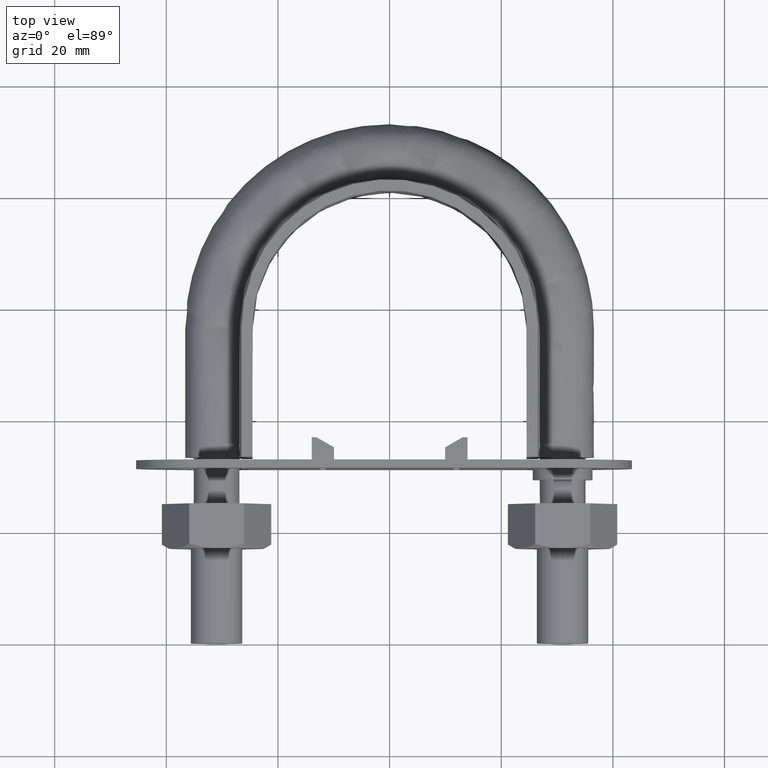
[diagram: clean part render]
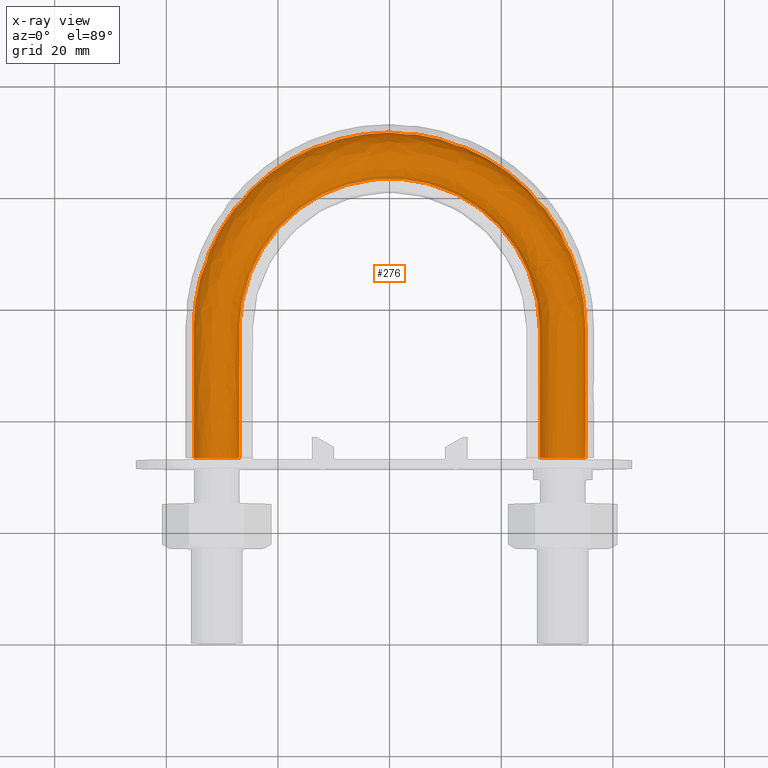
[diagram: x-ray — body ghosted, one internal face saturated and labeled with its STEP entity id]
A machine part, top view, then the same camera in x-ray: the body is ghosted and one INTERNAL B-rep face — a face not visible from any outside direction — is saturated and labeled: STEP entity #276.
In plain terms, the highlighted face is a freeform B-spline surface patch.
Its self-contained STEP definition (entity closure, byte-faithful):
#276 = ADVANCED_FACE( '', ( #401, #402 ), #403, .T. );
#401 = FACE_OUTER_BOUND( '', #1330, .T. );
#402 = FACE_OUTER_BOUND( '', #1331, .T. );
#403 = B_SPLINE_SURFACE_WITH_KNOTS( '', 3, 3, ( ( #1332, #1333, #1334, #1335, #1336, #1337, #1338, #1339, #1340, #1341, #1342, #1343, #1344, #1345, #1346 ), ( #1347, #1348, #1349, #1350, #1351, #1352, #1353, #1354, #1355, #1356, #1357, #1358, #1359, #1360, #1361 ), ( #1362, #1363, #1364, #1365, #1366, #1367, #1368, #1369, #1370, #1371, #1372, #1373, #1374, #1375, #1376 ), ( #1377, #1378, #1379, #1380, #1381, #1382, #1383, #1384, #1385, #1386, #1387, #1388, #1389, #1390, #1391 ), ( #1392, #1393, #1394, #1395, #1396, #1397, #1398, #1399, #1400, #1401, #1402, #1403, #1404, #1405, #1406 ), ( #1407, #1408, #1409, #1410, #1411, #1412, #1413, #1414, #1415, #1416, #1417, #1418, #1419, #1420, #1421 ), ( #1422, #1423, #1424, #1425, #1426, #1427, #1428, #1429, #1430, #1431, #1432, #1433, #1434, #1435, #1436 ), ( #1437, #1438, #1439, #1440, #1441, #1442, #1443, #1444, #1445, #1446, #1447, #1448, #1449, #1450, #1451 ), ( #1452, #1453, #1454, #1455, #1456, #1457, #1458, #1459, #1460, #1461, #1462, #1463, #1464, #1465, #1466 ), ( #1467, #1468, #1469, #1470, #1471, #1472, #1473, #1474, #1475, #1476, #1477, #1478, #1479, #1480, #1481 ) ), .UNSPECIFIED., .T., .F., .F., ( 2, 1, 1, 1, 1, 1, 1, 1, 1, 1, 1, 2 ), ( 4, 3, 1, 1, 1, 1, 1, 3, 4 ), ( -0.285714285714286, -0.142857142857143, 0.000000000000000, 0.142857142857143, 0.285714285714286, 0.428571428571429, 0.571428571428571, 0.714285714285714, 0.857142857142857, 1.00000000000000, 1.14285714285714, 1.28571428571429 ), ( 0.000000000000000, 1.00000000000000, 2.00000000000000, 3.00000000000000, 4.00000000000000, 5.00000000000000, 6.00000000000000, 7.00000000000000, 8.00000000000000 ), .UNSPECIFIED. );
#1330 = EDGE_LOOP( '', ( #1784, #1785, #1786, #1787, #1788, #1789, #1790 ) );
#1331 = EDGE_LOOP( '', ( #1791, #1792, #1793, #1794, #1795, #1796, #1797 ) );
#1332 = CARTESIAN_POINT( '', ( 28.0768231851220, 29.3500000000000, -3.66554778583225 ) );
#1333 = CARTESIAN_POINT( '', ( 28.0768231851220, 38.3833333333333, -3.66554778583225 ) );
#1334 = CARTESIAN_POINT( '', ( 28.0768231851220, 47.4166666666667, -3.66554778583225 ) );
#1335 = CARTESIAN_POINT( '', ( 28.0768231851220, 56.4500000000000, -3.66554778583225 ) );
#1336 = CARTESIAN_POINT( '', ( 28.0768231851220, 61.3360112912107, -3.66554778583225 ) );
#1337 = CARTESIAN_POINT( '', ( 25.4518771226932, 71.1503436557627, -3.66554778583225 ) );
#1338 = CARTESIAN_POINT( '', ( 14.6946481081682, 81.9002498233804, -3.66554778583225 ) );
#1339 = CARTESIAN_POINT( '', ( 1.74509282993778E-014, 85.8401098659927, -3.66554778583225 ) );
#1340 = CARTESIAN_POINT( '', ( -14.6946481081682, 81.9002498233804, -3.66554778583225 ) );
#1341 = CARTESIAN_POINT( '', ( -25.4518771226931, 71.1503436557627, -3.66554778583225 ) );
#1342 = CARTESIAN_POINT( '', ( -28.0768231851219, 61.3360112912106, -3.66554778583225 ) );
#1343 = CARTESIAN_POINT( '', ( -28.0768231851219, 56.4500000000000, -3.66554778583225 ) );
#1344 = CARTESIAN_POINT( '', ( -28.0768231851220, 47.4166666666666, -3.66554778583225 ) );
#1345 = CARTESIAN_POINT( '', ( -28.0768231851220, 38.3833333333333, -3.66554778583225 ) );
#1346 = CARTESIAN_POINT( '', ( -28.0768231851220, 29.3500000000000, -3.66554778583225 ) );
#1347 = CARTESIAN_POINT( '', ( 26.3115884074390, 29.3500000000000, 0.000000000000000 ) );
#1348 = CARTESIAN_POINT( '', ( 26.3115884074390, 38.3833333333333, 0.000000000000000 ) );
#1349 = CARTESIAN_POINT( '', ( 26.3115884074390, 47.4166666666667, 0.000000000000000 ) );
#1350 = CARTESIAN_POINT( '', ( 26.3115884074390, 56.4500000000000, 0.000000000000000 ) );
#1351 = CARTESIAN_POINT( '', ( 26.3115884074390, 61.0206824691230, 0.000000000000000 ) );
#1352 = CARTESIAN_POINT( '', ( 23.8516769021034, 70.2299070291376, 0.000000000000000 ) );
#1353 = CARTESIAN_POINT( '', ( 13.7707720800534, 80.2990669166508, 0.000000000000000 ) );
#1354 = CARTESIAN_POINT( '', ( 2.02604776616870E-014, 83.9928491528331, 0.000000000000000 ) );
#1355 = CARTESIAN_POINT( '', ( -13.7707720800534, 80.2990669166508, 0.000000000000000 ) );
#1356 = CARTESIAN_POINT( '', ( -23.8516769021034, 70.2299070291376, 0.000000000000000 ) );
#1357 = CARTESIAN_POINT( '', ( -26.3115884074390, 61.0206824691230, 0.000000000000000 ) );
#1358 = CARTESIAN_POINT( '', ( -26.3115884074390, 56.4500000000000, 0.000000000000000 ) );
#1359 = CARTESIAN_POINT( '', ( -26.3115884074390, 47.4166666666666, 0.000000000000000 ) );
#1360 = CARTESIAN_POINT( '', ( -26.3115884074390, 38.3833333333333, 0.000000000000000 ) );
#1361 = CARTESIAN_POINT( '', ( -26.3115884074390, 29.3500000000000, 0.000000000000000 ) );
#1362 = CARTESIAN_POINT( '', ( 28.0768231851220, 29.3500000000000, 3.66554778583225 ) );
#1363 = CARTESIAN_POINT( '', ( 28.0768231851220, 38.3833333333333, 3.66554778583225 ) );
#1364 = CARTESIAN_POINT( '', ( 28.0768231851220, 47.4166666666667, 3.66554778583225 ) );
#1365 = CARTESIAN_POINT( '', ( 28.0768231851220, 56.4500000000000, 3.66554778583225 ) );
#1366 = CARTESIAN_POINT( '', ( 28.0768231851220, 61.3360112912106, 3.66554778583225 ) );
#1367 = CARTESIAN_POINT( '', ( 25.4518771226932, 71.1503436557627, 3.66554778583225 ) );
#1368 = CARTESIAN_POINT( '', ( 14.6946481081682, 81.9002498233804, 3.66554778583225 ) );
#1369 = CARTESIAN_POINT( '', ( 2.61245456792618E-014, 85.8401098659927, 3.66554778583225 ) );
#1370 = CARTESIAN_POINT( '', ( -14.6946481081682, 81.9002498233804, 3.66554778583225 ) );
#1371 = CARTESIAN_POINT( '', ( -25.4518771226931, 71.1503436557627, 3.66554778583225 ) );
#1372 = CARTESIAN_POINT( '', ( -28.0768231851219, 61.3360112912106, 3.66554778583225 ) );
#1373 = CARTESIAN_POINT( '', ( -28.0768231851219, 56.4500000000000, 3.66554778583225 ) );
#1374 = CARTESIAN_POINT( '', ( -28.0768231851220, 47.4166666666667, 3.66554778583225 ) );
#1375 = CARTESIAN_POINT( '', ( -28.0768231851220, 38.3833333333333, 3.66554778583225 ) );
#1376 = CARTESIAN_POINT( '', ( -28.0768231851220, 29.3500000000000, 3.66554778583225 ) );
#1377 = CARTESIAN_POINT( '', ( 32.0432697263483, 29.3500000000000, 4.57086332538453 ) );
#1378 = CARTESIAN_POINT( '', ( 32.0432697263483, 38.3833333333333, 4.57086332538453 ) );
#1379 = CARTESIAN_POINT( '', ( 32.0432697263483, 47.4166666666666, 4.57086332538454 ) );
#1380 = CARTESIAN_POINT( '', ( 32.0432697263483, 56.4500000000000, 4.57086332538454 ) );
#1381 = CARTESIAN_POINT( '', ( 32.0432697263483, 62.0445487229058, 4.57086332538454 ) );
#1382 = CARTESIAN_POINT( '', ( 29.0474943802225, 73.2185459823037, 4.57086332538453 ) );
#1383 = CARTESIAN_POINT( '', ( 16.7705786997056, 85.4980751566230, 4.57086332538454 ) );
#1384 = CARTESIAN_POINT( '', ( 2.57654882985942E-014, 89.9908670112109, 4.57086332538454 ) );
#1385 = CARTESIAN_POINT( '', ( -16.7705786997056, 85.4980751566230, 4.57086332538454 ) );
#1386 = CARTESIAN_POINT( '', ( -29.0474943802224, 73.2185459823038, 4.57086332538453 ) );
#1387 = CARTESIAN_POINT( '', ( -32.0432697263483, 62.0445487229059, 4.57086332538454 ) );
#1388 = CARTESIAN_POINT( '', ( -32.0432697263483, 56.4500000000000, 4.57086332538454 ) );
#1389 = CARTESIAN_POINT( '', ( -32.0432697263483, 47.4166666666667, 4.57086332538454 ) );
#1390 = CARTESIAN_POINT( '', ( -32.0432697263483, 38.3833333333333, 4.57086332538453 ) );
#1391 = CARTESIAN_POINT( '', ( -32.0432697263483, 29.3500000000000, 4.57086332538453 ) );
#1392 = CARTESIAN_POINT( '', ( 35.2241128848103, 29.3500000000000, 2.03422555230246 ) );
#1393 = CARTESIAN_POINT( '', ( 35.2241128848102, 38.3833333333333, 2.03422555230246 ) );
#1394 = CARTESIAN_POINT( '', ( 35.2241128848103, 47.4166666666666, 2.03422555230246 ) );
#1395 = CARTESIAN_POINT( '', ( 35.2241128848103, 56.4500000000000, 2.03422555230246 ) );
#1396 = CARTESIAN_POINT( '', ( 35.2241128848103, 62.6127516266125, 2.03422555230246 ) );
#1397 = CARTESIAN_POINT( '', ( 31.9309555425463, 74.8771154732363, 2.03422555230246 ) );
#1398 = CARTESIAN_POINT( '', ( 18.4353457779711, 88.3833070581849, 2.03422555230247 ) );
#1399 = CARTESIAN_POINT( '', ( 2.18363080540617E-014, 93.3195157981229, 2.03422555230246 ) );
#1400 = CARTESIAN_POINT( '', ( -18.4353457779711, 88.3833070581848, 2.03422555230247 ) );
#1401 = CARTESIAN_POINT( '', ( -31.9309555425463, 74.8771154732363, 2.03422555230246 ) );
#1402 = CARTESIAN_POINT( '', ( -35.2241128848102, 62.6127516266125, 2.03422555230246 ) );
#1403 = CARTESIAN_POINT( '', ( -35.2241128848102, 56.4500000000000, 2.03422555230246 ) );
#1404 = CARTESIAN_POINT( '', ( -35.2241128848102, 47.4166666666667, 2.03422555230246 ) );
#1405 = CARTESIAN_POINT( '', ( -35.2241128848102, 38.3833333333333, 2.03422555230246 ) );
#1406 = CARTESIAN_POINT( '', ( -35.2241128848102, 29.3500000000000, 2.03422555230246 ) );
#1407 = CARTESIAN_POINT( '', ( 35.2241128848103, 29.3500000000000, -2.03422555230246 ) );
#1408 = CARTESIAN_POINT( '', ( 35.2241128848102, 38.3833333333333, -2.03422555230246 ) );
#1409 = CARTESIAN_POINT( '', ( 35.2241128848103, 47.4166666666666, -2.03422555230246 ) );
#1410 = CARTESIAN_POINT( '', ( 35.2241128848103, 56.4500000000000, -2.03422555230246 ) );
#1411 = CARTESIAN_POINT( '', ( 35.2241128848103, 62.6127516266125, -2.03422555230246 ) );
#1412 = CARTESIAN_POINT( '', ( 31.9309555425463, 74.8771154732363, -2.03422555230246 ) );
#1413 = CARTESIAN_POINT( '', ( 18.4353457779711, 88.3833070581848, -2.03422555230246 ) );
#1414 = CARTESIAN_POINT( '', ( 1.92342228400965E-014, 93.3195157981229, -2.03422555230246 ) );
#1415 = CARTESIAN_POINT( '', ( -18.4353457779711, 88.3833070581848, -2.03422555230246 ) );
#1416 = CARTESIAN_POINT( '', ( -31.9309555425463, 74.8771154732363, -2.03422555230246 ) );
#1417 = CARTESIAN_POINT( '', ( -35.2241128848102, 62.6127516266125, -2.03422555230246 ) );
#1418 = CARTESIAN_POINT( '', ( -35.2241128848102, 56.4500000000000, -2.03422555230246 ) );
#1419 = CARTESIAN_POINT( '', ( -35.2241128848102, 47.4166666666667, -2.03422555230246 ) );
#1420 = CARTESIAN_POINT( '', ( -35.2241128848102, 38.3833333333333, -2.03422555230246 ) );
#1421 = CARTESIAN_POINT( '', ( -35.2241128848102, 29.3500000000000, -2.03422555230246 ) );
#1422 = CARTESIAN_POINT( '', ( 32.0432697263483, 29.3500000000000, -4.57086332538454 ) );
#1423 = CARTESIAN_POINT( '', ( 32.0432697263483, 38.3833333333333, -4.57086332538454 ) );
#1424 = CARTESIAN_POINT( '', ( 32.0432697263483, 47.4166666666666, -4.57086332538454 ) );
#1425 = CARTESIAN_POINT( '', ( 32.0432697263483, 56.4500000000000, -4.57086332538454 ) );
#1426 = CARTESIAN_POINT( '', ( 32.0432697263483, 62.0445487229059, -4.57086332538454 ) );
#1427 = CARTESIAN_POINT( '', ( 29.0474943802225, 73.2185459823037, -4.57086332538453 ) );
#1428 = CARTESIAN_POINT( '', ( 16.7705786997056, 85.4980751566230, -4.57086332538454 ) );
#1429 = CARTESIAN_POINT( '', ( 1.62245091807218E-014, 89.9908670112109, -4.57086332538454 ) );
#1430 = CARTESIAN_POINT( '', ( -16.7705786997056, 85.4980751566230, -4.57086332538454 ) );
#1431 = CARTESIAN_POINT( '', ( -29.0474943802224, 73.2185459823037, -4.57086332538453 ) );
#1432 = CARTESIAN_POINT( '', ( -32.0432697263483, 62.0445487229059, -4.57086332538454 ) );
#1433 = CARTESIAN_POINT( '', ( -32.0432697263483, 56.4500000000000, -4.57086332538454 ) );
#1434 = CARTESIAN_POINT( '', ( -32.0432697263483, 47.4166666666667, -4.57086332538454 ) );
#1435 = CARTESIAN_POINT( '', ( -32.0432697263483, 38.3833333333333, -4.57086332538454 ) );
#1436 = CARTESIAN_POINT( '', ( -32.0432697263483, 29.3500000000000, -4.57086332538454 ) );
#1437 = CARTESIAN_POINT( '', ( 28.0768231851220, 29.3500000000000, -3.66554778583225 ) );
#1438 = CARTESIAN_POINT( '', ( 28.0768231851220, 38.3833333333333, -3.66554778583225 ) );
#1439 = CARTESIAN_POINT( '', ( 28.0768231851220, 47.4166666666667, -3.66554778583225 ) );
#1440 = CARTESIAN_POINT( '', ( 28.0768231851220, 56.4500000000000, -3.66554778583225 ) );
#1441 = CARTESIAN_POINT( '', ( 28.0768231851220, 61.3360112912107, -3.66554778583225 ) );
#1442 = CARTESIAN_POINT( '', ( 25.4518771226932, 71.1503436557627, -3.66554778583225 ) );
#1443 = CARTESIAN_POINT( '', ( 14.6946481081682, 81.9002498233804, -3.66554778583225 ) );
#1444 = CARTESIAN_POINT( '', ( 1.74509282993778E-014, 85.8401098659927, -3.66554778583225 ) );
#1445 = CARTESIAN_POINT( '', ( -14.6946481081682, 81.9002498233804, -3.66554778583225 ) );
#1446 = CARTESIAN_POINT( '', ( -25.4518771226931, 71.1503436557627, -3.66554778583225 ) );
#1447 = CARTESIAN_POINT( '', ( -28.0768231851219, 61.3360112912106, -3.66554778583225 ) );
#1448 = CARTESIAN_POINT( '', ( -28.0768231851219, 56.4500000000000, -3.66554778583225 ) );
#1449 = CARTESIAN_POINT( '', ( -28.0768231851220, 47.4166666666666, -3.66554778583225 ) );
#1450 = CARTESIAN_POINT( '', ( -28.0768231851220, 38.3833333333333, -3.66554778583225 ) );
#1451 = CARTESIAN_POINT( '', ( -28.0768231851220, 29.3500000000000, -3.66554778583225 ) );
#1452 = CARTESIAN_POINT( '', ( 26.3115884074390, 29.3500000000000, 0.000000000000000 ) );
#1453 = CARTESIAN_POINT( '', ( 26.3115884074390, 38.3833333333333, 0.000000000000000 ) );
#1454 = CARTESIAN_POINT( '', ( 26.3115884074390, 47.4166666666667, 0.000000000000000 ) );
#1455 = CARTESIAN_POINT( '', ( 26.3115884074390, 56.4500000000000, 0.000000000000000 ) );
#1456 = CARTESIAN_POINT( '', ( 26.3115884074390, 61.0206824691230, 0.000000000000000 ) );
#1457 = CARTESIAN_POINT( '', ( 23.8516769021034, 70.2299070291376, 0.000000000000000 ) );
#1458 = CARTESIAN_POINT( '', ( 13.7707720800534, 80.2990669166508, 0.000000000000000 ) );
#1459 = CARTESIAN_POINT( '', ( 2.02604776616870E-014, 83.9928491528331, 0.000000000000000 ) );
#1460 = CARTESIAN_POINT( '', ( -13.7707720800534, 80.2990669166508, 0.000000000000000 ) );
#1461 = CARTESIAN_POINT( '', ( -23.8516769021034, 70.2299070291376, 0.000000000000000 ) );
#1462 = CARTESIAN_POINT( '', ( -26.3115884074390, 61.0206824691230, 0.000000000000000 ) );
#1463 = CARTESIAN_POINT( '', ( -26.3115884074390, 56.4500000000000, 0.000000000000000 ) );
#1464 = CARTESIAN_POINT( '', ( -26.3115884074390, 47.4166666666666, 0.000000000000000 ) );
#1465 = CARTESIAN_POINT( '', ( -26.3115884074390, 38.3833333333333, 0.000000000000000 ) );
#1466 = CARTESIAN_POINT( '', ( -26.3115884074390, 29.3500000000000, 0.000000000000000 ) );
#1467 = CARTESIAN_POINT( '', ( 28.0768231851220, 29.3500000000000, 3.66554778583225 ) );
#1468 = CARTESIAN_POINT( '', ( 28.0768231851220, 38.3833333333333, 3.66554778583225 ) );
#1469 = CARTESIAN_POINT( '', ( 28.0768231851220, 47.4166666666667, 3.66554778583225 ) );
#1470 = CARTESIAN_POINT( '', ( 28.0768231851220, 56.4500000000000, 3.66554778583225 ) );
#1471 = CARTESIAN_POINT( '', ( 28.0768231851220, 61.3360112912106, 3.66554778583225 ) );
#1472 = CARTESIAN_POINT( '', ( 25.4518771226932, 71.1503436557627, 3.66554778583225 ) );
#1473 = CARTESIAN_POINT( '', ( 14.6946481081682, 81.9002498233804, 3.66554778583225 ) );
#1474 = CARTESIAN_POINT( '', ( 2.61245456792618E-014, 85.8401098659927, 3.66554778583225 ) );
#1475 = CARTESIAN_POINT( '', ( -14.6946481081682, 81.9002498233804, 3.66554778583225 ) );
#1476 = CARTESIAN_POINT( '', ( -25.4518771226931, 71.1503436557627, 3.66554778583225 ) );
#1477 = CARTESIAN_POINT( '', ( -28.0768231851219, 61.3360112912106, 3.66554778583225 ) );
#1478 = CARTESIAN_POINT( '', ( -28.0768231851219, 56.4500000000000, 3.66554778583225 ) );
#1479 = CARTESIAN_POINT( '', ( -28.0768231851220, 47.4166666666667, 3.66554778583225 ) );
#1480 = CARTESIAN_POINT( '', ( -28.0768231851220, 38.3833333333333, 3.66554778583225 ) );
#1481 = CARTESIAN_POINT( '', ( -28.0768231851220, 29.3500000000000, 3.66554778583225 ) );
#1784 = ORIENTED_EDGE( '', *, *, #2541, .T. );
#1785 = ORIENTED_EDGE( '', *, *, #2542, .T. );
#1786 = ORIENTED_EDGE( '', *, *, #2543, .T. );
#1787 = ORIENTED_EDGE( '', *, *, #2544, .T. );
#1788 = ORIENTED_EDGE( '', *, *, #2545, .T. );
#1789 = ORIENTED_EDGE( '', *, *, #2546, .T. );
#1790 = ORIENTED_EDGE( '', *, *, #2547, .T. );
#1791 = ORIENTED_EDGE( '', *, *, #2548, .T. );
#1792 = ORIENTED_EDGE( '', *, *, #2549, .F. );
#1793 = ORIENTED_EDGE( '', *, *, #2550, .F. );
#1794 = ORIENTED_EDGE( '', *, *, #2551, .F. );
#1795 = ORIENTED_EDGE( '', *, *, #2552, .F. );
#1796 = ORIENTED_EDGE( '', *, *, #2553, .F. );
#1797 = ORIENTED_EDGE( '', *, *, #2540, .F. );
#2540 = EDGE_CURVE( '', #2791, #2792, #2794, .T. );
#2541 = EDGE_CURVE( '', #2775, #2786, #2795, .T. );
#2542 = EDGE_CURVE( '', #2786, #2784, #2796, .T. );
#2543 = EDGE_CURVE( '', #2784, #2782, #2797, .T. );
#2544 = EDGE_CURVE( '', #2782, #2780, #2798, .T. );
#2545 = EDGE_CURVE( '', #2780, #2778, #2799, .T. );
#2546 = EDGE_CURVE( '', #2778, #2776, #2800, .T. );
#2547 = EDGE_CURVE( '', #2776, #2775, #2801, .T. );
#2548 = EDGE_CURVE( '', #2791, #2802, #2803, .T. );
#2549 = EDGE_CURVE( '', #2804, #2802, #2805, .T. );
#2550 = EDGE_CURVE( '', #2806, #2804, #2807, .T. );
#2551 = EDGE_CURVE( '', #2808, #2806, #2809, .T. );
#2552 = EDGE_CURVE( '', #2810, #2808, #2811, .T. );
#2553 = EDGE_CURVE( '', #2792, #2810, #2812, .T. );
#2775 = VERTEX_POINT( '', #3361 );
#2776 = VERTEX_POINT( '', #3362 );
#2778 = VERTEX_POINT( '', #3364 );
#2780 = VERTEX_POINT( '', #3366 );
#2782 = VERTEX_POINT( '', #3368 );
#2784 = VERTEX_POINT( '', #3370 );
#2786 = VERTEX_POINT( '', #3372 );
#2791 = VERTEX_POINT( '', #3377 );
#2792 = VERTEX_POINT( '', #3378 );
#2794 = B_SPLINE_CURVE_WITH_KNOTS( '', 3, ( #3380, #3381, #3382, #3383 ), .UNSPECIFIED., .F., .F., ( 4, 4 ), ( -1.00000000000000, -0.857142857142857 ), .UNSPECIFIED. );
#2795 = B_SPLINE_CURVE_WITH_KNOTS( '', 3, ( #3384, #3385, #3386, #3387 ), .UNSPECIFIED., .F., .F., ( 4, 4 ), ( 5.20417042793042E-017, 0.00365969768494601 ), .UNSPECIFIED. );
#2796 = B_SPLINE_CURVE_WITH_KNOTS( '', 3, ( #3388, #3389, #3390, #3391 ), .UNSPECIFIED., .F., .F., ( 4, 4 ), ( 0.00365969768494601, 0.00731437302338657 ), .UNSPECIFIED. );
#2797 = B_SPLINE_CURVE_WITH_KNOTS( '', 3, ( #3392, #3393, #3394, #3395 ), .UNSPECIFIED., .F., .F., ( 4, 4 ), ( 0.00731437302338657, 0.0109748044148466 ), .UNSPECIFIED. );
#2798 = B_SPLINE_CURVE_WITH_KNOTS( '', 3, ( #3396, #3397, #3398, #3399 ), .UNSPECIFIED., .F., .F., ( 4, 4 ), ( 0.0109748044148466, 0.0146317467085368 ), .UNSPECIFIED. );
#2799 = B_SPLINE_CURVE_WITH_KNOTS( '', 3, ( #3400, #3401, #3402, #3403 ), .UNSPECIFIED., .F., .F., ( 4, 4 ), ( 0.0146317467085368, 0.0182856759681268 ), .UNSPECIFIED. );
#2800 = B_SPLINE_CURVE_WITH_KNOTS( '', 3, ( #3404, #3405, #3406, #3407 ), .UNSPECIFIED., .F., .F., ( 4, 4 ), ( 0.0182856759681268, 0.0219456464543702 ), .UNSPECIFIED. );
#2801 = B_SPLINE_CURVE_WITH_KNOTS( '', 3, ( #3408, #3409, #3410, #3411 ), .UNSPECIFIED., .F., .F., ( 4, 4 ), ( 0.0219456464543702, 0.0255944202292315 ), .UNSPECIFIED. );
#2802 = VERTEX_POINT( '', #3412 );
#2803 = B_SPLINE_CURVE_WITH_KNOTS( '', 3, ( #3413, #3414, #3415, #3416 ), .UNSPECIFIED., .F., .F., ( 4, 4 ), ( 2.90940334553050E-016, 0.00365969768494577 ), .UNSPECIFIED. );
#2804 = VERTEX_POINT( '', #3417 );
#2805 = B_SPLINE_CURVE_WITH_KNOTS( '', 3, ( #3418, #3419, #3420, #3421 ), .UNSPECIFIED., .F., .F., ( 4, 4 ), ( -0.285714285714286, -0.142857142857143 ), .UNSPECIFIED. );
#2806 = VERTEX_POINT( '', #3422 );
#2807 = B_SPLINE_CURVE_WITH_KNOTS( '', 3, ( #3423, #3424, #3425, #3426 ), .UNSPECIFIED., .F., .F., ( 4, 4 ), ( -0.428571428571429, -0.285714285714286 ), .UNSPECIFIED. );
#2808 = VERTEX_POINT( '', #3427 );
#2809 = B_SPLINE_CURVE_WITH_KNOTS( '', 3, ( #3428, #3429, #3430, #3431 ), .UNSPECIFIED., .F., .F., ( 4, 4 ), ( -0.571428571428571, -0.428571428571429 ), .UNSPECIFIED. );
#2810 = VERTEX_POINT( '', #3432 );
#2811 = B_SPLINE_CURVE_WITH_KNOTS( '', 3, ( #3433, #3434, #3435, #3436 ), .UNSPECIFIED., .F., .F., ( 4, 4 ), ( -0.714285714285714, -0.571428571428571 ), .UNSPECIFIED. );
#2812 = B_SPLINE_CURVE_WITH_KNOTS( '', 3, ( #3437, #3438, #3439, #3440 ), .UNSPECIFIED., .F., .F., ( 4, 4 ), ( -0.857142857142857, -0.714285714285714 ), .UNSPECIFIED. );
#3361 = CARTESIAN_POINT( '', ( -26.9000000000000, 33.3000000000000, 5.33492735711505E-014 ) );
#3362 = CARTESIAN_POINT( '', ( -28.4436918123920, 33.3000000000000, 3.20550907812911 ) );
#3364 = CARTESIAN_POINT( '', ( -31.9123358292377, 33.3000000000000, 3.99720443994166 ) );
#3366 = CARTESIAN_POINT( '', ( -34.6939723584000, 33.3000000000000, 1.77892333038180 ) );
#3368 = CARTESIAN_POINT( '', ( -34.6939723583862, 33.3000000000000, -1.77892333041036 ) );
#3370 = CARTESIAN_POINT( '', ( -31.9123358292209, 33.3000000000000, -3.99720443994546 ) );
#3372 = CARTESIAN_POINT( '', ( -28.4436918123794, 33.3000000000000, -3.20550907811911 ) );
#3377 = CARTESIAN_POINT( '', ( 26.9000000000000, 33.3000000000000, -2.95212466993632E-013 ) );
#3378 = CARTESIAN_POINT( '', ( 28.4436918123816, 33.3000000000000, -3.20550907812087 ) );
#3380 = CARTESIAN_POINT( '', ( 26.9000000000000, 33.3000000000000, -1.12529343482271E-012 ) );
#3381 = CARTESIAN_POINT( '', ( 26.9000000000003, 33.3000000000000, -1.22184926194564 ) );
#3382 = CARTESIAN_POINT( '', ( 27.4884115925620, 33.3000000000000, -2.44369852389024 ) );
#3383 = CARTESIAN_POINT( '', ( 28.4436918123816, 33.3000000000000, -3.20550907812087 ) );
#3384 = CARTESIAN_POINT( '', ( -26.9000000000000, 33.3000000000000, -1.07769695945059E-013 ) );
#3385 = CARTESIAN_POINT( '', ( -26.9000000000000, 33.3000000000000, -1.22184926194423 ) );
#3386 = CARTESIAN_POINT( '', ( -27.4884115925611, 33.3000000000000, -2.44369852388837 ) );
#3387 = CARTESIAN_POINT( '', ( -28.4436918123794, 33.3000000000000, -3.20550907811911 ) );
#3388 = CARTESIAN_POINT( '', ( -28.4436918123794, 33.3000000000000, -3.20550907811912 ) );
#3389 = CARTESIAN_POINT( '', ( -29.3989720321976, 33.3000000000000, -3.96731963234974 ) );
#3390 = CARTESIAN_POINT( '', ( -30.7211208792730, 33.3000000000000, -4.26909147886709 ) );
#3391 = CARTESIAN_POINT( '', ( -31.9123358292209, 33.3000000000000, -3.99720443994546 ) );
#3392 = CARTESIAN_POINT( '', ( -31.9123358292097, 33.3000000000000, -3.99720443994758 ) );
#3393 = CARTESIAN_POINT( '', ( -33.1035507791542, 33.3000000000000, -3.72531740102979 ) );
#3394 = CARTESIAN_POINT( '', ( -34.1638318319714, 33.3000000000000, -2.87977147667767 ) );
#3395 = CARTESIAN_POINT( '', ( -34.6939723583862, 33.3000000000000, -1.77892333041036 ) );
#3396 = CARTESIAN_POINT( '', ( -34.6939723583862, 33.3000000000000, -1.77892333041043 ) );
#3397 = CARTESIAN_POINT( '', ( -35.2241128848102, 33.3000000000000, -0.678075184124233 ) );
#3398 = CARTESIAN_POINT( '', ( -35.2241128848148, 33.3000000000000, 0.678075184091199 ) );
#3399 = CARTESIAN_POINT( '', ( -34.6939723584000, 33.3000000000000, 1.77892333038179 ) );
#3400 = CARTESIAN_POINT( '', ( -34.6939723584025, 33.3000000000000, 1.77892333037609 ) );
#3401 = CARTESIAN_POINT( '', ( -34.1638318319947, 33.3000000000000, 2.87977147665590 ) );
#3402 = CARTESIAN_POINT( '', ( -33.1035507791790, 33.3000000000000, 3.72531740101588 ) );
#3403 = CARTESIAN_POINT( '', ( -31.9123358292377, 33.3000000000000, 3.99720443994164 ) );
#3404 = CARTESIAN_POINT( '', ( -31.9123358292434, 33.3000000000000, 3.99720443994012 ) );
#3405 = CARTESIAN_POINT( '', ( -30.7211208792935, 33.3000000000000, 4.26909147886940 ) );
#3406 = CARTESIAN_POINT( '', ( -29.3989720322137, 33.3000000000000, 3.96731963235594 ) );
#3407 = CARTESIAN_POINT( '', ( -28.4436918123920, 33.3000000000000, 3.20550907812910 ) );
#3408 = CARTESIAN_POINT( '', ( -28.4436918123920, 33.3000000000000, 3.20550907812910 ) );
#3409 = CARTESIAN_POINT( '', ( -27.4884115925662, 33.3000000000000, 2.44369852389905 ) );
#3410 = CARTESIAN_POINT( '', ( -26.9000000000000, 33.3000000000000, 1.22184926194953 ) );
#3411 = CARTESIAN_POINT( '', ( -26.9000000000000, 33.3000000000000, 5.42101086242752E-016 ) );
#3412 = CARTESIAN_POINT( '', ( 28.4436918123793, 33.3000000000000, 3.20550907811897 ) );
#3413 = CARTESIAN_POINT( '', ( 26.9000000000000, 33.3000000000000, 3.25260651745651E-016 ) );
#3414 = CARTESIAN_POINT( '', ( 26.9000000000000, 33.3000000000000, 1.22184926194410 ) );
#3415 = CARTESIAN_POINT( '', ( 27.4884115925610, 33.3000000000000, 2.44369852388821 ) );
#3416 = CARTESIAN_POINT( '', ( 28.4436918123793, 33.3000000000000, 3.20550907811896 ) );
#3417 = CARTESIAN_POINT( '', ( 31.9123358292210, 33.3000000000000, 3.99720443994545 ) );
#3418 = CARTESIAN_POINT( '', ( 31.9123358292211, 33.3000000000000, 3.99720443994544 ) );
#3419 = CARTESIAN_POINT( '', ( 30.7211208792730, 33.3000000000000, 4.26909147886712 ) );
#3420 = CARTESIAN_POINT( '', ( 29.3989720321975, 33.3000000000000, 3.96731963234971 ) );
#3421 = CARTESIAN_POINT( '', ( 28.4436918123793, 33.3000000000000, 3.20550907811897 ) );
#3422 = CARTESIAN_POINT( '', ( 34.6939723584001, 33.3000000000000, 1.77892333038165 ) );
#3423 = CARTESIAN_POINT( '', ( 34.6939723584001, 33.3000000000000, 1.77892333038160 ) );
#3424 = CARTESIAN_POINT( '', ( 34.1638318319899, 33.3000000000000, 2.87977147666293 ) );
#3425 = CARTESIAN_POINT( '', ( 33.1035507791691, 33.3000000000000, 3.72531740102376 ) );
#3426 = CARTESIAN_POINT( '', ( 31.9123358292210, 33.3000000000000, 3.99720443994545 ) );
#3427 = CARTESIAN_POINT( '', ( 34.6939723583997, 33.3000000000000, -1.77892333038239 ) );
#3428 = CARTESIAN_POINT( '', ( 34.6939723583997, 33.3000000000000, -1.77892333038251 ) );
#3429 = CARTESIAN_POINT( '', ( 35.2241128848102, 33.3000000000000, -0.678075184101335 ) );
#3430 = CARTESIAN_POINT( '', ( 35.2241128848103, 33.3000000000000, 0.678075184100404 ) );
#3431 = CARTESIAN_POINT( '', ( 34.6939723584001, 33.3000000000000, 1.77892333038164 ) );
#3432 = CARTESIAN_POINT( '', ( 31.9123358292213, 33.3000000000000, -3.99720443994539 ) );
#3433 = CARTESIAN_POINT( '', ( 31.9123358292211, 33.3000000000000, -3.99720443994542 ) );
#3434 = CARTESIAN_POINT( '', ( 33.1035507791690, 33.3000000000000, -3.72531740102375 ) );
#3435 = CARTESIAN_POINT( '', ( 34.1638318319894, 33.3000000000000, -2.87977147666324 ) );
#3436 = CARTESIAN_POINT( '', ( 34.6939723583997, 33.3000000000000, -1.77892333038239 ) );
#3437 = CARTESIAN_POINT( '', ( 28.4436918123817, 33.3000000000000, -3.20550907812096 ) );
#3438 = CARTESIAN_POINT( '', ( 29.3989720321998, 33.3000000000000, -3.96731963235029 ) );
#3439 = CARTESIAN_POINT( '', ( 30.7211208792741, 33.3000000000000, -4.26909147886694 ) );
#3440 = CARTESIAN_POINT( '', ( 31.9123358292213, 33.3000000000000, -3.99720443994539 ) );